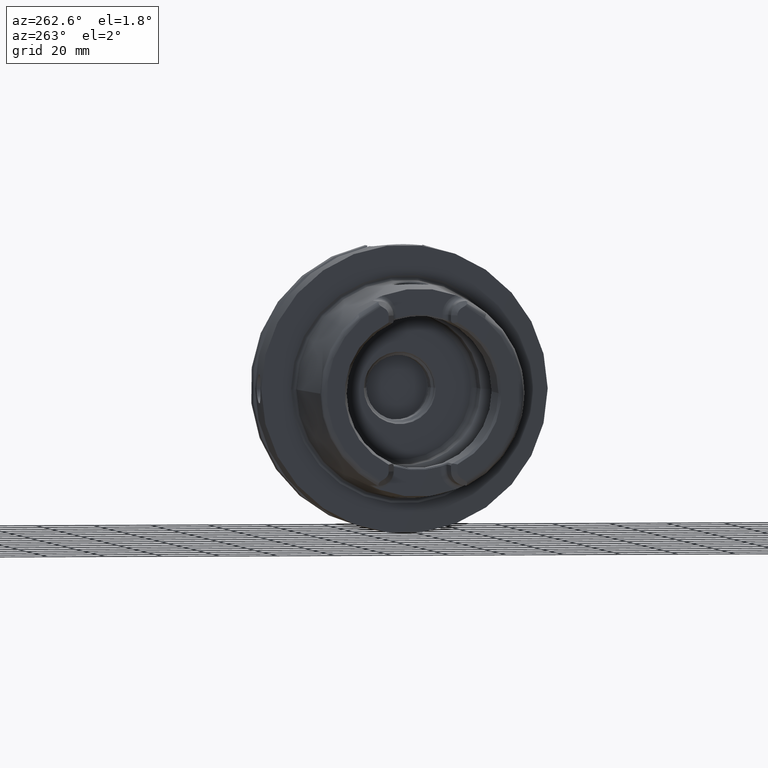
[diagram: clean part render]
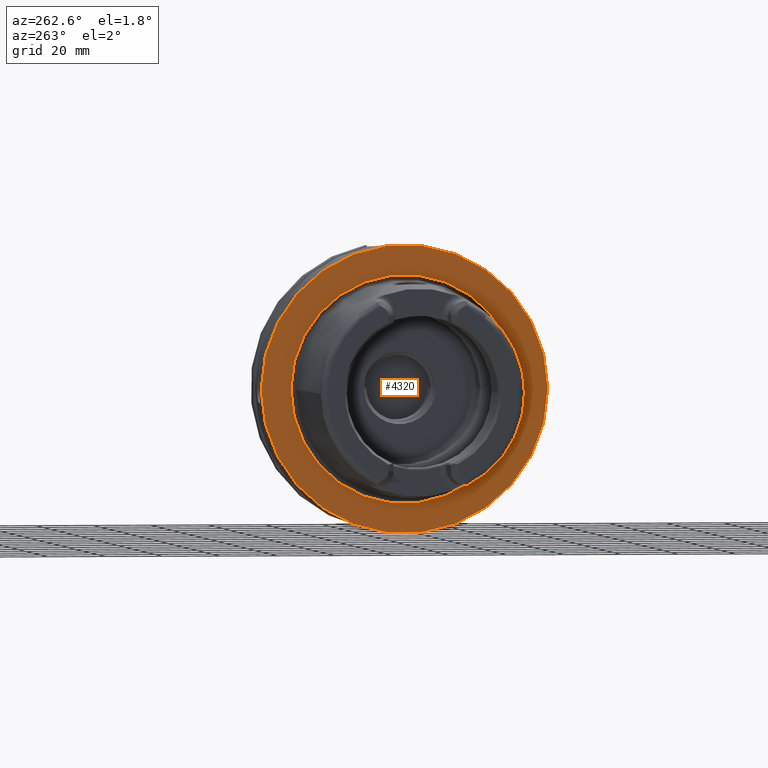
[diagram: same view with one face highlighted and labeled with its STEP entity id]
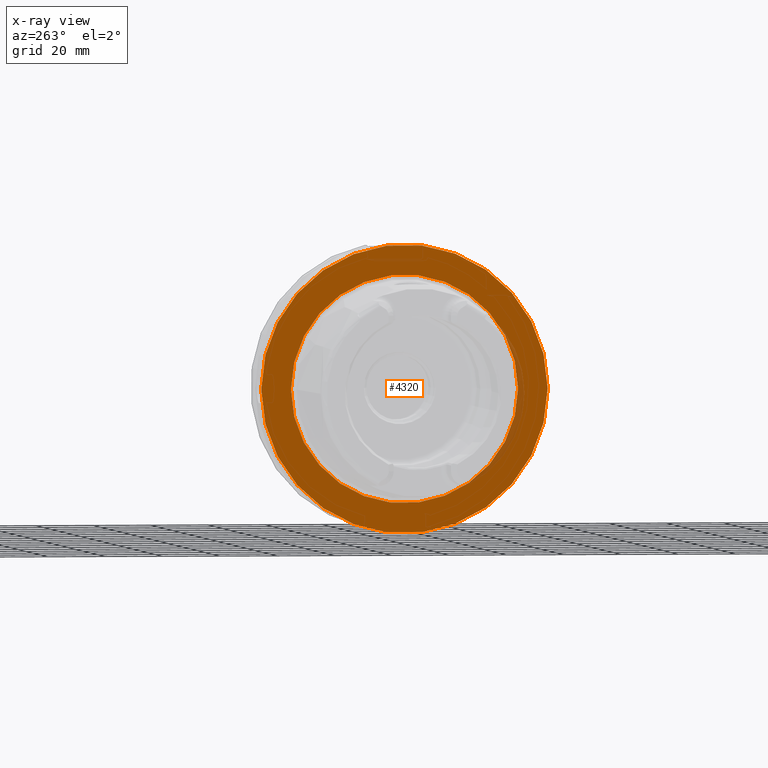
[diagram: x-ray of the same camera — body ghosted, the highlighted face saturated]
A machine part, auxiliary view. The second image highlights one B-rep face of the part: STEP entity #4320.
The next image is the same camera in x-ray: the body ghosted, the highlighted face saturated — about 4% of this face is hidden behind the body in this view.
In plain terms, the highlighted planar face has unit normal (1, 0, 0).
Its self-contained STEP definition (entity closure, byte-faithful):
#905=CARTESIAN_POINT('',(2.842170943040E-14,0.E0,0.E0));
#906=DIRECTION('',(1.E0,0.E0,0.E0));
#907=DIRECTION('',(0.E0,1.E0,0.E0));
#908=AXIS2_PLACEMENT_3D('',#905,#906,#907);
#910=CARTESIAN_POINT('',(2.842170943040E-14,0.E0,0.E0));
#911=DIRECTION('',(-1.E0,0.E0,0.E0));
#912=DIRECTION('',(0.E0,1.E0,0.E0));
#913=AXIS2_PLACEMENT_3D('',#910,#911,#912);
#915=CARTESIAN_POINT('',(0.E0,0.E0,0.E0));
#916=DIRECTION('',(-1.E0,0.E0,0.E0));
#917=DIRECTION('',(0.E0,-1.E0,0.E0));
#918=AXIS2_PLACEMENT_3D('',#915,#916,#917);
#920=CARTESIAN_POINT('',(0.E0,0.E0,0.E0));
#921=DIRECTION('',(-1.E0,0.E0,0.E0));
#922=DIRECTION('',(0.E0,1.E0,0.E0));
#923=AXIS2_PLACEMENT_3D('',#920,#921,#922);
#2871=CARTESIAN_POINT('',(2.842170943040E-14,5.E1,0.E0));
#2872=CARTESIAN_POINT('',(2.842170943040E-14,-5.E1,0.E0));
#2873=VERTEX_POINT('',#2871);
#2874=VERTEX_POINT('',#2872);
#2899=CARTESIAN_POINT('',(0.E0,-3.963225E1,0.E0));
#2900=VERTEX_POINT('',#2899);
#2901=CARTESIAN_POINT('',(0.E0,3.963225E1,0.E0));
#2902=VERTEX_POINT('',#2901);
#4305=CARTESIAN_POINT('',(0.E0,0.E0,0.E0));
#4306=DIRECTION('',(1.E0,0.E0,0.E0));
#4307=DIRECTION('',(0.E0,-1.E0,0.E0));
#4308=AXIS2_PLACEMENT_3D('',#4305,#4306,#4307);
#4309=PLANE('',#4308);
#4311=ORIENTED_EDGE('',*,*,#4310,.T.);
#4313=ORIENTED_EDGE('',*,*,#4312,.F.);
#4314=EDGE_LOOP('',(#4311,#4313));
#4315=FACE_OUTER_BOUND('',#4314,.F.);
#4316=ORIENTED_EDGE('',*,*,#4300,.T.);
#4317=ORIENTED_EDGE('',*,*,#4284,.T.);
#4318=EDGE_LOOP('',(#4316,#4317));
#4319=FACE_BOUND('',#4318,.F.);
#4320=ADVANCED_FACE('',(#4315,#4319),#4309,.F.);
#909=CIRCLE('',#908,5.E1);
#914=CIRCLE('',#913,5.E1);
#919=CIRCLE('',#918,3.963225E1);
#924=CIRCLE('',#923,3.963225E1);
#4284=EDGE_CURVE('',#2902,#2900,#924,.T.);
#4300=EDGE_CURVE('',#2900,#2902,#919,.T.);
#4310=EDGE_CURVE('',#2873,#2874,#909,.T.);
#4312=EDGE_CURVE('',#2873,#2874,#914,.T.);